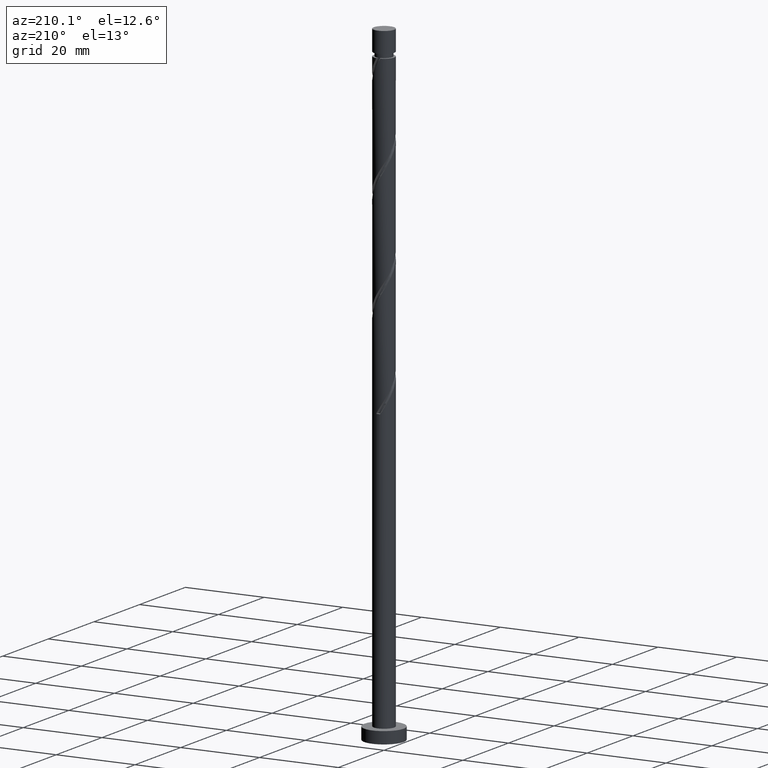
[diagram: clean part render]
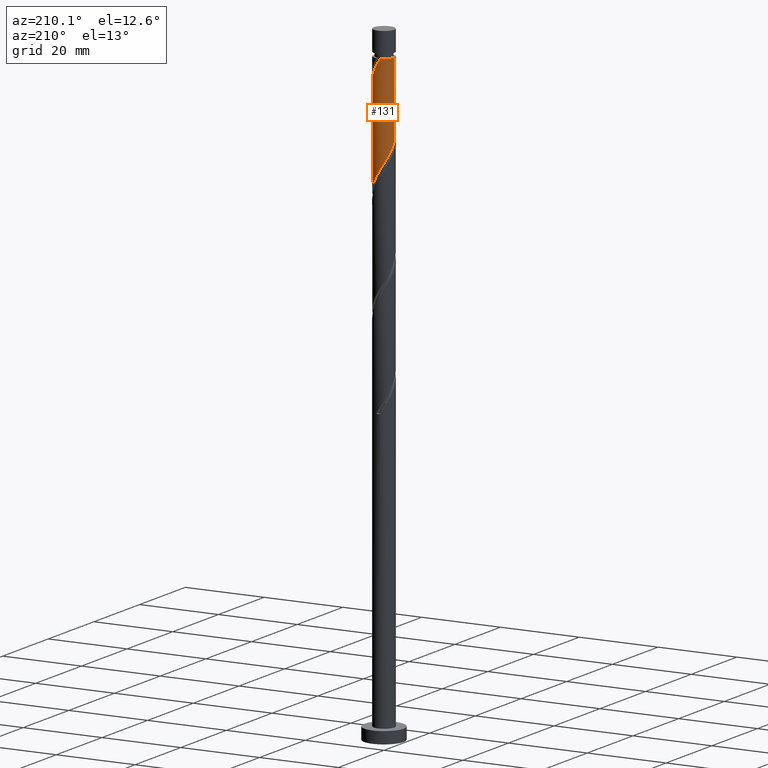
[diagram: same view with one face highlighted and labeled with its STEP entity id]
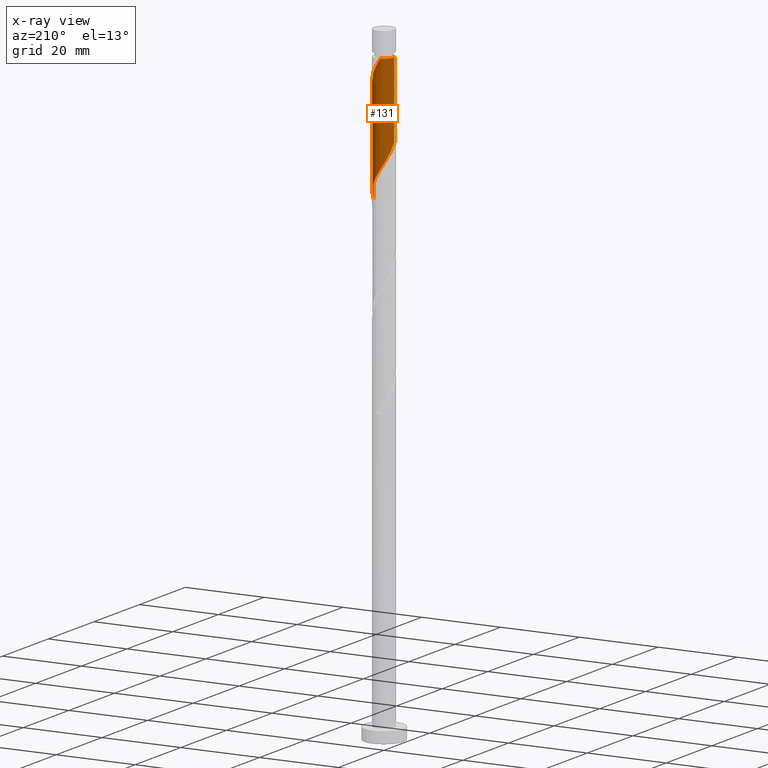
[diagram: x-ray of the same camera — body ghosted, the highlighted face saturated]
A machine part, auxiliary view. The second image highlights one B-rep face of the part: STEP entity #131.
The next image is the same camera in x-ray: the body ghosted, the highlighted face saturated — about 0% of this face is hidden behind the body in this view.
In plain terms, the highlighted cylindrical surface (edge-blend (fillet) strip) has radius 2.6 mm, axis along (-0, -0, -1).
Its self-contained STEP definition (entity closure, byte-faithful):
#30 = CARTESIAN_POINT ( 'NONE',  ( 0.000000000000000000, 0.000000000000000000, 160.0000000000000000 ) ) ;
#33 = CARTESIAN_POINT ( 'NONE',  ( -2.600000000000000089, 7.732676303707661966E-15, 134.6160129578344424 ) ) ;
#64 = CARTESIAN_POINT ( 'NONE',  ( 2.264470581186239340, 1.277565257410381072, 123.4635281755032281 ) ) ;
#69 = CARTESIAN_POINT ( 'NONE',  ( -2.448432266290810677, 0.8747453557384823331, 133.1604978724729449 ) ) ;
#72 = EDGE_CURVE ( 'NONE', #425, #1401, #999, .T. ) ;
#76 = CARTESIAN_POINT ( 'NONE',  ( 2.102809310219688754, 1.529115105168155297, 148.9180736300486672 ) ) ;
#86 = CARTESIAN_POINT ( 'NONE',  ( -1.882955749076662411, 1.831453440388287390, 131.3423160542911035 ) ) ;
#105 = CARTESIAN_POINT ( 'NONE',  ( 0.9422937206507969732, 2.423238028758647022, 151.3423160542911035 ) ) ;
#117 = CARTESIAN_POINT ( 'NONE',  ( 2.448432266290815118, 0.8747453557384826661, 147.7059524179274774 ) ) ;
#126 = ORIENTED_EDGE ( 'NONE', *, *, #1210, .F. ) ;
#131 = ADVANCED_FACE ( 'NONE', ( #1275 ), #1016, .T. ) ;
#139 = DIRECTION ( 'NONE',  ( -1.000000000000000000, 0.000000000000000000, 0.000000000000000000 ) ) ;
#179 = CARTESIAN_POINT ( 'NONE',  ( 2.600000000000003642, -4.487046211048901510E-16, 146.2504373325659515 ) ) ;
#198 = CARTESIAN_POINT ( 'NONE',  ( 2.600000000000003642, -4.487046211048901510E-16, 146.2504373325659230 ) ) ;
#214 =( BOUNDED_CURVE ( )  B_SPLINE_CURVE ( 2, ( #1087, #471, #1596, #435, #69, #701, #586, #86, #569, #337, #1612, #709, #844, #1222, #1369, #722, #1464, #694, #310, #1336, #64, #1081, #1604, #444, #1006 ),
 .UNSPECIFIED., .F., .T. ) 
 B_SPLINE_CURVE_WITH_KNOTS ( ( 3, 2, 2, 2, 2, 2, 2, 2, 2, 2, 2, 2, 3 ),
 ( 0.4295252162417512176, 0.4318181818181818232, 0.4431818181818181768, 0.4545454545454545303, 0.4659090909090908839, 0.4772727272727272929, 0.4886363636363636465, 0.5000000000000000000, 0.5113636363636363535, 0.5227272727272727071, 0.5340909090909090606, 0.5454545454545454142, 0.5545252162417512176 ),
 .UNSPECIFIED. ) 
 CURVE ( )  GEOMETRIC_REPRESENTATION_ITEM ( )  RATIONAL_B_SPLINE_CURVE ( ( 0.9061101570135583483, 0.9072237824201404566, 0.9090909090909180534, 0.8998376744372204028, 0.9090909090909180534, 0.8998376744372204028, 0.9090909090909180534, 0.8998376744372204028, 0.9090909090909180534, 0.8998376744372204028, 0.9090909090909180534, 0.8998376744372204028, 0.9090909090909180534, 0.8998376744372204028, 0.9090909090909180534, 0.8998376744372204028, 0.9090909090909180534, 0.8998376744372204028, 0.9090909090909180534, 0.8998376744372204028, 0.9090909090909180534, 0.8998376744372204028, 0.9090909090909180534, 0.9017048011079978886, 0.9061101570135583483 ) ) 
 REPRESENTATION_ITEM ( '' )  );
#310 = CARTESIAN_POINT ( 'NONE',  ( 1.812811885102928677, 1.863789974549054040, 124.6756493876244605 ) ) ;
#331 = CARTESIAN_POINT ( 'NONE',  ( 1.882955749076667518, 1.831453440388288278, 149.5241342361092904 ) ) ;
#337 = CARTESIAN_POINT ( 'NONE',  ( -1.290702750369455920, 2.287756645161296731, 130.1301948421699137 ) ) ;
#338 = CARTESIAN_POINT ( 'NONE',  ( 2.322662871362710657, 1.226776769948022094, 148.3120130239880154 ) ) ;
#348 = CARTESIAN_POINT ( 'NONE',  ( 0.2214191583679425424, 2.590554681203940390, 152.5544372664123216 ) ) ;
#396 = CARTESIAN_POINT ( 'NONE',  ( -2.600000000000000089, 0.000000000000000000, 160.0000000000000000 ) ) ;
#402 = CARTESIAN_POINT ( 'NONE',  ( -0.5173934672954778602, 2.547999999999997822, 153.7665584785335398 ) ) ;
#423 = ORIENTED_EDGE ( 'NONE', *, *, #72, .T. ) ;
#425 = VERTEX_POINT ( 'NONE', #179 ) ;
#435 = CARTESIAN_POINT ( 'NONE',  ( -2.574201661218915138, 0.5227139415289434599, 133.7665584785335398 ) ) ;
#441 = ORIENTED_EDGE ( 'NONE', *, *, #1011, .F. ) ;
#444 = CARTESIAN_POINT ( 'NONE',  ( 2.600000000000000977, 0.2977752112013191121, 121.7686395774723991 ) ) ;
#463 = CARTESIAN_POINT ( 'NONE',  ( 2.600000000000000089, 3.184081677783118191E-16, 160.0000000000000000 ) ) ;
#471 = CARTESIAN_POINT ( 'NONE',  ( -2.600000000000000089, 0.07481636896193601116, 134.4939149531162172 ) ) ;
#525 = VECTOR ( 'NONE', #1511, 1000.000000000000000 ) ;
#569 = CARTESIAN_POINT ( 'NONE',  ( -1.586829249723058943, 2.059605042774792061, 130.7362554482305086 ) ) ;
#586 = CARTESIAN_POINT ( 'NONE',  ( -2.102809310219684313, 1.529115105168154187, 131.9483766603517267 ) ) ;
#605 = EDGE_CURVE ( 'NONE', #425, #661, #1419, .T. ) ;
#661 = VERTEX_POINT ( 'NONE', #402 ) ;
#694 = CARTESIAN_POINT ( 'NONE',  ( 1.544839342197331655, 2.124432974722964662, 125.2817099936850411 ) ) ;
#701 = CARTESIAN_POINT ( 'NONE',  ( -2.322662871362705328, 1.226776769948021206, 132.5544372664123216 ) ) ;
#709 = CARTESIAN_POINT ( 'NONE',  ( -0.5938846909321356948, 2.558719412355991096, 128.9180736300486672 ) ) ;
#722 = CARTESIAN_POINT ( 'NONE',  ( 0.8837405603946364430, 2.473610049948115730, 126.4938312058062877 ) ) ;
#723 = CARTESIAN_POINT ( 'NONE',  ( 1.586829249723061608, 2.059605042774794725, 150.1301948421698569 ) ) ;
#733 = CARTESIAN_POINT ( 'NONE',  ( 2.600000000000005418, 0.07481636896192321584, 146.3725353372842619 ) ) ;
#743 = AXIS2_PLACEMENT_3D ( 'NONE', #923, #1019, #1288 ) ;
#759 = ORIENTED_EDGE ( 'NONE', *, *, #962, .T. ) ;
#821 = VERTEX_POINT ( 'NONE', #33 ) ;
#844 = CARTESIAN_POINT ( 'NONE',  ( -0.2214191583679415987, 2.590554681203936838, 128.3120130239881291 ) ) ;
#871 = CARTESIAN_POINT ( 'NONE',  ( 1.290702750369457696, 2.287756645161300284, 150.7362554482304802 ) ) ;
#923 = CARTESIAN_POINT ( 'NONE',  ( 0.000000000000000000, 0.000000000000000000, 153.7665584785335398 ) ) ;
#960 = CARTESIAN_POINT ( 'NONE',  ( 2.595697801534425420, 0.1495089398978209916, 146.4938312058063161 ) ) ;
#962 = EDGE_CURVE ( 'NONE', #1583, #661, #1065, .T. ) ;
#977 = CARTESIAN_POINT ( 'NONE',  ( 2.574201661218919135, 0.5227139415289434599, 147.0998918118668541 ) ) ;
#999 = LINE ( 'NONE', #463, #525 ) ;
#1006 = CARTESIAN_POINT ( 'NONE',  ( 2.600000000000000533, 2.595008392056634366E-15, 121.2826796245011423 ) ) ;
#1011 = EDGE_CURVE ( 'NONE', #1583, #821, #1163, .T. ) ;
#1016 = CYLINDRICAL_SURFACE ( 'NONE', #1022, 2.600000000000000089 ) ;
#1019 = DIRECTION ( 'NONE',  ( -0.000000000000000000, -0.000000000000000000, -1.000000000000000000 ) ) ;
#1022 = AXIS2_PLACEMENT_3D ( 'NONE', #30, #1151, #139 ) ;
#1065 = CIRCLE ( 'NONE', #743, 2.599999999999993872 ) ;
#1081 = CARTESIAN_POINT ( 'NONE',  ( 2.448156734363953646, 0.9519835404456153949, 122.8574675694426332 ) ) ;
#1087 = CARTESIAN_POINT ( 'NONE',  ( -2.600000000000000089, 7.732676303707661966E-15, 134.6160129578344424 ) ) ;
#1104 = CARTESIAN_POINT ( 'NONE',  ( 0.5938846909321372491, 2.558719412355995981, 151.9483766603517267 ) ) ;
#1151 = DIRECTION ( 'NONE',  ( -0.000000000000000000, -0.000000000000000000, -1.000000000000000000 ) ) ;
#1163 = LINE ( 'NONE', #396, #1389 ) ;
#1164 = EDGE_LOOP ( 'NONE', ( #1431, #423, #126, #441, #759 ) ) ;
#1210 = EDGE_CURVE ( 'NONE', #821, #1401, #214, .T. ) ;
#1222 = CARTESIAN_POINT ( 'NONE',  ( 0.1510463741962523310, 2.622389950051882135, 127.7059524179274490 ) ) ;
#1275 = FACE_OUTER_BOUND ( 'NONE', #1164, .T. ) ;
#1288 = DIRECTION ( 'NONE',  ( -1.000000000000000000, 0.000000000000000000, 0.000000000000000000 ) ) ;
#1336 = CARTESIAN_POINT ( 'NONE',  ( 2.080784428008526366, 1.603146974375144085, 124.0695887815638372 ) ) ;
#1369 = CARTESIAN_POINT ( 'NONE',  ( 0.5173934672954449976, 2.548000000000000043, 127.0998918118668684 ) ) ;
#1378 = CARTESIAN_POINT ( 'NONE',  ( -0.1510463741962407291, 2.622389950051886576, 153.1604978724728880 ) ) ;
#1389 = VECTOR ( 'NONE', #1422, 1000.000000000000000 ) ;
#1401 = VERTEX_POINT ( 'NONE', #1466 ) ;
#1419 =( BOUNDED_CURVE ( )  B_SPLINE_CURVE ( 2, ( #198, #733, #960, #977, #117, #338, #76, #331, #723, #871, #105, #1104, #348, #1378, #1640 ),
 .UNSPECIFIED., .F., .T. ) 
 B_SPLINE_CURVE_WITH_KNOTS ( ( 3, 2, 2, 2, 2, 2, 2, 3 ),
 ( 0.6795252162417508845, 0.6818181818181818787, 0.6931818181818180102, 0.7045454545454544748, 0.7159090909090906063, 0.7272727272727270709, 0.7386363636363633134, 0.7499999999999996669 ),
 .UNSPECIFIED. ) 
 CURVE ( )  GEOMETRIC_REPRESENTATION_ITEM ( )  RATIONAL_B_SPLINE_CURVE ( ( 0.9061101570135645655, 0.9072237824201467848, 0.9090909090909247148, 0.8998376744372269531, 0.9090909090909247148, 0.8998376744372269531, 0.9090909090909247148, 0.8998376744372269531, 0.9090909090909247148, 0.8998376744372269531, 0.9090909090909247148, 0.8998376744372269531, 0.9090909090909247148, 0.8998376744372271752, 0.9090909090909244927 ) ) 
 REPRESENTATION_ITEM ( '' )  );
#1422 = DIRECTION ( 'NONE',  ( -0.000000000000000000, -0.000000000000000000, -1.000000000000000000 ) ) ;
#1431 = ORIENTED_EDGE ( 'NONE', *, *, #605, .F. ) ;
#1441 = CARTESIAN_POINT ( 'NONE',  ( -2.599999999999993872, 0.000000000000000000, 153.7665584785335398 ) ) ;
#1464 = CARTESIAN_POINT ( 'NONE',  ( 1.214289951295983716, 2.299021512335540418, 125.8877705997456502 ) ) ;
#1466 = CARTESIAN_POINT ( 'NONE',  ( 2.600000000000000533, 2.595008392056634366E-15, 121.2826796245011423 ) ) ;
#1511 = DIRECTION ( 'NONE',  ( -0.000000000000000000, -0.000000000000000000, -1.000000000000000000 ) ) ;
#1583 = VERTEX_POINT ( 'NONE', #1441 ) ;
#1596 = CARTESIAN_POINT ( 'NONE',  ( -2.595697801534421423, 0.1495089398978218520, 134.3726190845941630 ) ) ;
#1604 = CARTESIAN_POINT ( 'NONE',  ( 2.532675338106940899, 0.5878398010894576586, 122.2514069633820384 ) ) ;
#1612 = CARTESIAN_POINT ( 'NONE',  ( -0.9422937206507956409, 2.423238028758644802, 129.5241342361093189 ) ) ;
#1640 = CARTESIAN_POINT ( 'NONE',  ( -0.5173934672954778602, 2.547999999999997822, 153.7665584785335398 ) ) ;